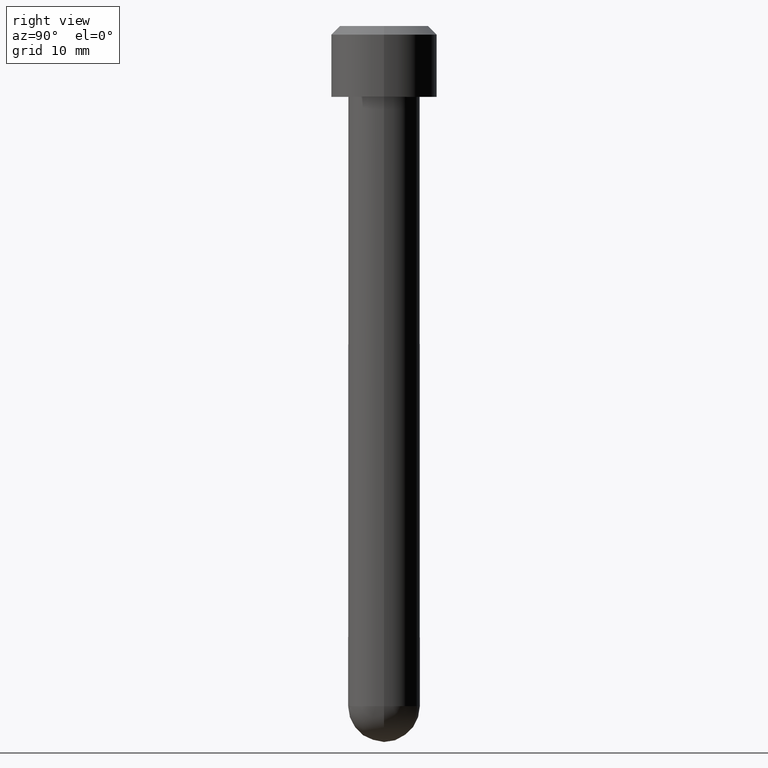
[diagram: clean part render]
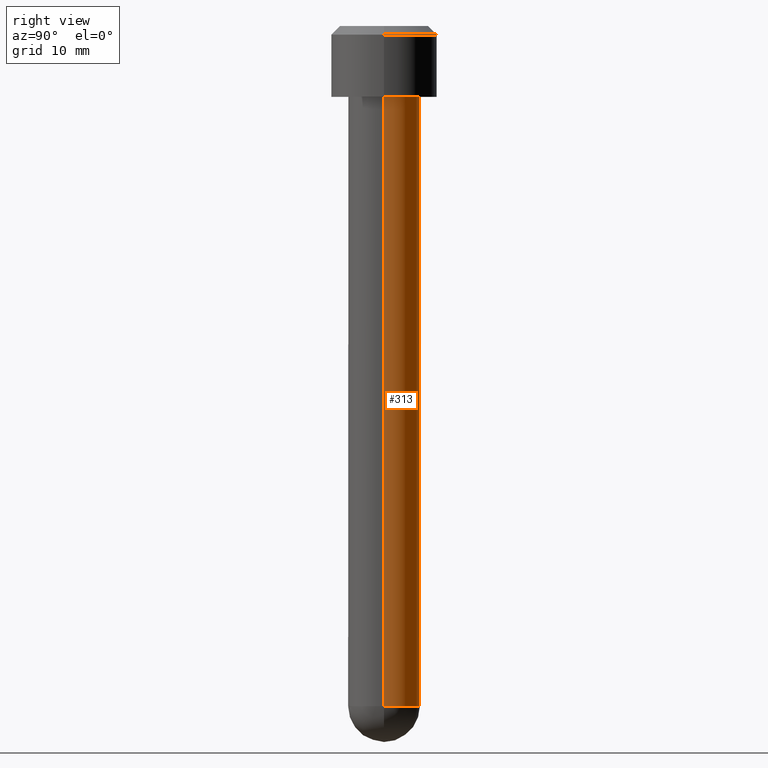
[diagram: same view with one face highlighted and labeled with its STEP entity id]
A machine part, right view. The second image highlights one B-rep face of the part: STEP entity #313.
In plain terms, the highlighted cylindrical surface (edge-blend (fillet) strip) has radius 3.175 mm, axis along (-0, -0, 1).
Its self-contained STEP definition (entity closure, byte-faithful):
#6 = EDGE_CURVE ( 'NONE', #82, #91, #375, .T. ) ;
#23 = AXIS2_PLACEMENT_3D ( 'NONE', #107, #93, #128 ) ;
#26 = AXIS2_PLACEMENT_3D ( 'NONE', #227, #216, #220 ) ;
#41 = AXIS2_PLACEMENT_3D ( 'NONE', #105, #136, #137 ) ;
#48 = EDGE_CURVE ( 'NONE', #175, #82, #496, .T. ) ;
#58 = EDGE_CURVE ( 'NONE', #84, #91, #499, .T. ) ;
#77 = EDGE_CURVE ( 'NONE', #84, #175, #346, .T. ) ;
#82 = VERTEX_POINT ( 'NONE', #120 ) ;
#84 = VERTEX_POINT ( 'NONE', #108 ) ;
#91 = VERTEX_POINT ( 'NONE', #97 ) ;
#93 = DIRECTION ( 'NONE',  ( -0.0000000000000000000, -0.0000000000000000000, 1.000000000000000000 ) ) ;
#97 = CARTESIAN_POINT ( 'NONE',  ( 0.1250000000000000000, 0.0000000000000000000, -0.2469999999999998600 ) ) ;
#105 = CARTESIAN_POINT ( 'NONE',  ( 0.0000000000000000000, 0.0000000000000000000, -0.2469999999999998600 ) ) ;
#107 = CARTESIAN_POINT ( 'NONE',  ( 0.0000000000000000000, 0.0000000000000000000, -2.372000000000000300 ) ) ;
#108 = CARTESIAN_POINT ( 'NONE',  ( 0.1250000000000000000, 0.0000000000000000000, -2.372000000000000300 ) ) ;
#118 = DIRECTION ( 'NONE',  ( -0.0000000000000000000, -0.0000000000000000000, 1.000000000000000000 ) ) ;
#120 = CARTESIAN_POINT ( 'NONE',  ( -0.1250000000000000000, 1.530808498934191500E-017, -0.2469999999999998600 ) ) ;
#128 = DIRECTION ( 'NONE',  ( 1.000000000000000000, 0.0000000000000000000, 0.0000000000000000000 ) ) ;
#136 = DIRECTION ( 'NONE',  ( -0.0000000000000000000, -0.0000000000000000000, -1.000000000000000000 ) ) ;
#137 = DIRECTION ( 'NONE',  ( 1.000000000000000000, 0.0000000000000000000, 0.0000000000000000000 ) ) ;
#175 = VERTEX_POINT ( 'NONE', #179 ) ;
#179 = CARTESIAN_POINT ( 'NONE',  ( -0.1250000000000000000, 1.530808498934191500E-017, -2.372000000000000300 ) ) ;
#216 = DIRECTION ( 'NONE',  ( -0.0000000000000000000, -0.0000000000000000000, 1.000000000000000000 ) ) ;
#220 = DIRECTION ( 'NONE',  ( 1.000000000000000000, 0.0000000000000000000, 0.0000000000000000000 ) ) ;
#227 = CARTESIAN_POINT ( 'NONE',  ( 0.0000000000000000000, 0.0000000000000000000, -2.497000000000000300 ) ) ;
#231 = CARTESIAN_POINT ( 'NONE',  ( -0.1250000000000000000, 1.530808498934191500E-017, -2.497000000000000300 ) ) ;
#239 = DIRECTION ( 'NONE',  ( -0.0000000000000000000, -0.0000000000000000000, 1.000000000000000000 ) ) ;
#240 = CARTESIAN_POINT ( 'NONE',  ( 0.1250000000000000000, 0.0000000000000000000, -2.497000000000000300 ) ) ;
#313 = ADVANCED_FACE ( 'Face1', ( #419 ), #355, .T. ) ;
#339 = ORIENTED_EDGE ( 'NONE', *, *, #48, .T. ) ;
#346 = CIRCLE ( 'NONE', #23, 0.1250000000000000000 ) ;
#351 = VECTOR ( 'NONE', #239, 39.37007874015748100 ) ;
#355 = CYLINDRICAL_SURFACE ( 'NONE', #26, 0.1250000000000000000 ) ;
#375 = CIRCLE ( 'NONE', #41, 0.1250000000000000000 ) ;
#382 = ORIENTED_EDGE ( 'NONE', *, *, #77, .T. ) ;
#419 = FACE_OUTER_BOUND ( 'NONE', #504, .T. ) ;
#443 = ORIENTED_EDGE ( 'NONE', *, *, #58, .F. ) ;
#464 = ORIENTED_EDGE ( 'NONE', *, *, #6, .T. ) ;
#473 = VECTOR ( 'NONE', #118, 39.37007874015748100 ) ;
#496 = LINE ( 'NONE', #231, #473 ) ;
#499 = LINE ( 'NONE', #240, #351 ) ;
#504 = EDGE_LOOP ( 'NONE', ( #382, #339, #464, #443 ) ) ;